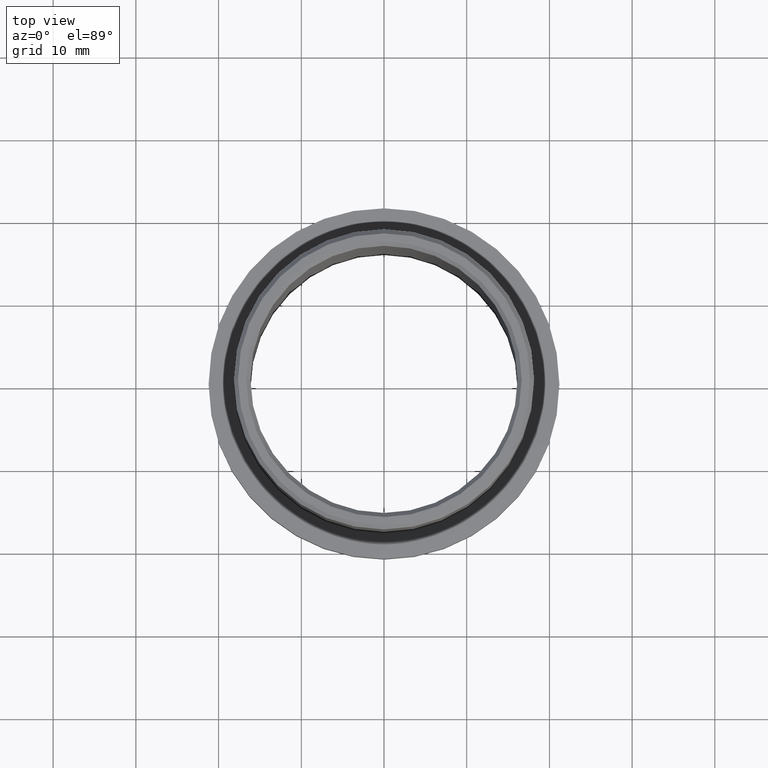
[diagram: clean part render]
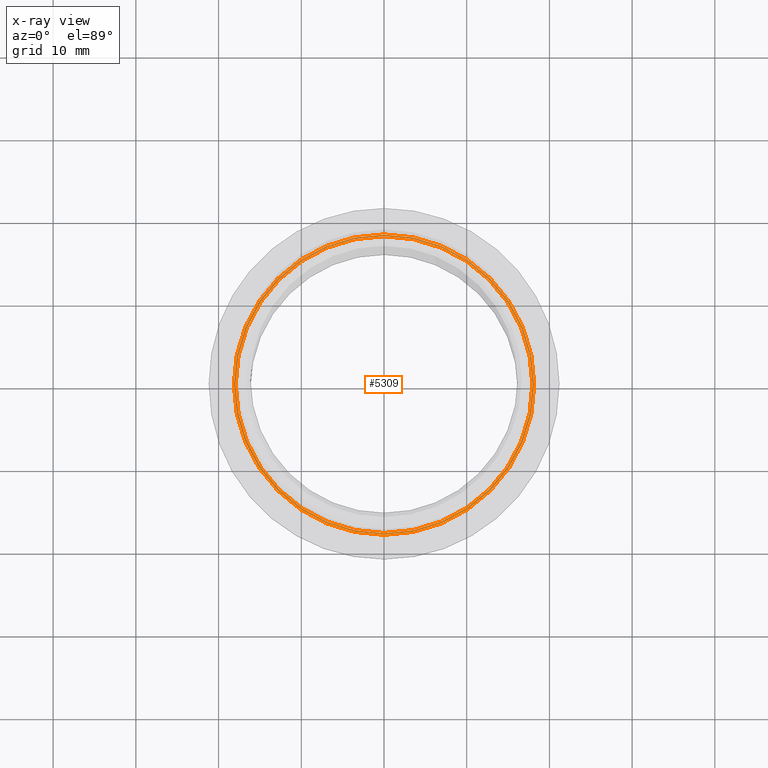
[diagram: x-ray — body ghosted, one internal face saturated and labeled with its STEP entity id]
A machine part, top view, then the same camera in x-ray: the body is ghosted and one INTERNAL B-rep face — a face not visible from any outside direction — is saturated and labeled: STEP entity #5309.
In plain terms, the highlighted planar face has unit normal (0, 0, -1).
Its self-contained STEP definition (entity closure, byte-faithful):
#77 = DIRECTION ( 'NONE',  ( 0.0000000000000000000, 0.0000000000000000000, -1.000000000000000000 ) ) ;
#785 = ORIENTED_EDGE ( 'NONE', *, *, #5053, .T. ) ;
#1400 = CARTESIAN_POINT ( 'NONE',  ( 17.95000000000000300, -2.198241004469499500E-015, -5.500000000000000000 ) ) ;
#2548 = CIRCLE ( 'NONE', #11448, 17.95000000000000300 ) ;
#2608 = ORIENTED_EDGE ( 'NONE', *, *, #16531, .T. ) ;
#3461 = CARTESIAN_POINT ( 'NONE',  ( 0.0000000000000000000, 0.0000000000000000000, -5.500000000000000000 ) ) ;
#4648 = CARTESIAN_POINT ( 'NONE',  ( 0.0000000000000000000, 0.0000000000000000000, -5.500000000000000000 ) ) ;
#5045 = CARTESIAN_POINT ( 'NONE',  ( -17.95000000000000300, 0.0000000000000000000, -5.500000000000000000 ) ) ;
#5053 = EDGE_CURVE ( 'NONE', #7908, #17114, #17884, .T. ) ;
#5309 = ADVANCED_FACE ( 'NONE', ( #21582, #14241 ), #13526, .F. ) ;
#5548 = AXIS2_PLACEMENT_3D ( 'NONE', #10543, #20417, #18635 ) ;
#6056 = CARTESIAN_POINT ( 'NONE',  ( -18.15000000000000600, 0.0000000000000000000, -5.500000000000000000 ) ) ;
#6415 = CARTESIAN_POINT ( 'NONE',  ( 0.0000000000000000000, 0.0000000000000000000, -5.500000000000000000 ) ) ;
#6682 = ORIENTED_EDGE ( 'NONE', *, *, #7542, .F. ) ;
#7542 = EDGE_CURVE ( 'NONE', #16607, #9729, #20997, .T. ) ;
#7908 = VERTEX_POINT ( 'NONE', #19804 ) ;
#7988 = DIRECTION ( 'NONE',  ( 1.000000000000000000, 0.0000000000000000000, 0.0000000000000000000 ) ) ;
#8676 = CARTESIAN_POINT ( 'NONE',  ( 0.0000000000000000000, 0.0000000000000000000, -5.500000000000000000 ) ) ;
#9729 = VERTEX_POINT ( 'NONE', #1400 ) ;
#9949 = EDGE_LOOP ( 'NONE', ( #6682, #10293 ) ) ;
#10293 = ORIENTED_EDGE ( 'NONE', *, *, #12619, .F. ) ;
#10325 = DIRECTION ( 'NONE',  ( 1.000000000000000000, 0.0000000000000000000, 0.0000000000000000000 ) ) ;
#10543 = CARTESIAN_POINT ( 'NONE',  ( 0.0000000000000000000, 0.0000000000000000000, -5.500000000000000000 ) ) ;
#10602 = CIRCLE ( 'NONE', #18569, 18.15000000000000600 ) ;
#11104 = DIRECTION ( 'NONE',  ( 1.000000000000000000, 0.0000000000000000000, 0.0000000000000000000 ) ) ;
#11448 = AXIS2_PLACEMENT_3D ( 'NONE', #8676, #18670, #15476 ) ;
#12619 = EDGE_CURVE ( 'NONE', #9729, #16607, #2548, .T. ) ;
#13103 = AXIS2_PLACEMENT_3D ( 'NONE', #4648, #19680, #7988 ) ;
#13526 = PLANE ( 'NONE',  #15371 ) ;
#14241 = FACE_OUTER_BOUND ( 'NONE', #17969, .T. ) ;
#15371 = AXIS2_PLACEMENT_3D ( 'NONE', #3461, #77, #10325 ) ;
#15476 = DIRECTION ( 'NONE',  ( 1.000000000000000000, 0.0000000000000000000, 0.0000000000000000000 ) ) ;
#16531 = EDGE_CURVE ( 'NONE', #17114, #7908, #10602, .T. ) ;
#16607 = VERTEX_POINT ( 'NONE', #5045 ) ;
#17114 = VERTEX_POINT ( 'NONE', #6056 ) ;
#17884 = CIRCLE ( 'NONE', #13103, 18.15000000000000600 ) ;
#17969 = EDGE_LOOP ( 'NONE', ( #2608, #785 ) ) ;
#18569 = AXIS2_PLACEMENT_3D ( 'NONE', #6415, #19871, #11104 ) ;
#18635 = DIRECTION ( 'NONE',  ( 1.000000000000000000, 0.0000000000000000000, 0.0000000000000000000 ) ) ;
#18670 = DIRECTION ( 'NONE',  ( -0.0000000000000000000, -0.0000000000000000000, 1.000000000000000000 ) ) ;
#19680 = DIRECTION ( 'NONE',  ( -0.0000000000000000000, -0.0000000000000000000, 1.000000000000000000 ) ) ;
#19804 = CARTESIAN_POINT ( 'NONE',  ( 18.15000000000000600, -2.222733940452446600E-015, -5.500000000000000000 ) ) ;
#19871 = DIRECTION ( 'NONE',  ( -0.0000000000000000000, -0.0000000000000000000, 1.000000000000000000 ) ) ;
#20417 = DIRECTION ( 'NONE',  ( -0.0000000000000000000, -0.0000000000000000000, 1.000000000000000000 ) ) ;
#20997 = CIRCLE ( 'NONE', #5548, 17.95000000000000300 ) ;
#21582 = FACE_BOUND ( 'NONE', #9949, .T. ) ;